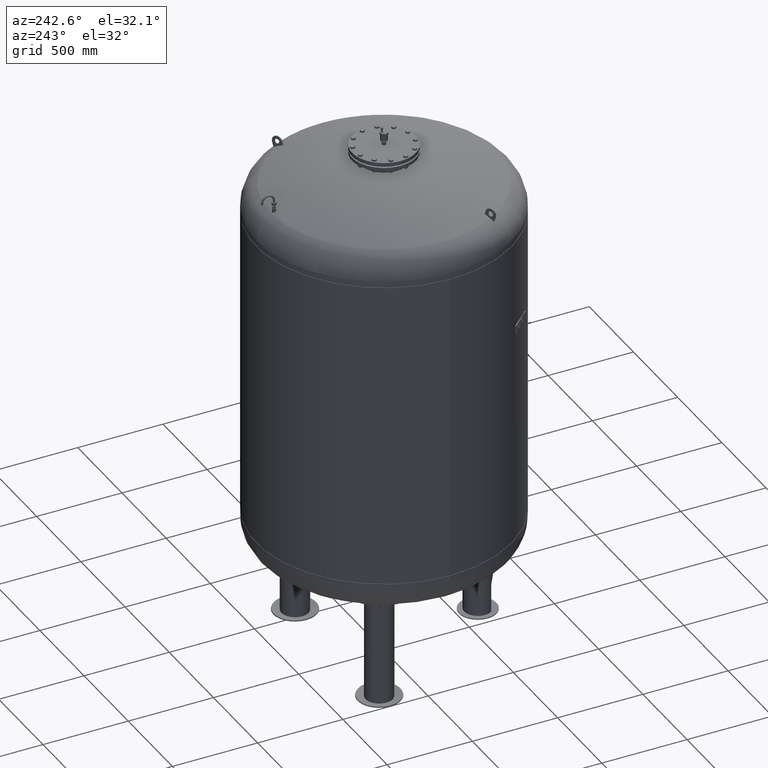
[diagram: clean part render]
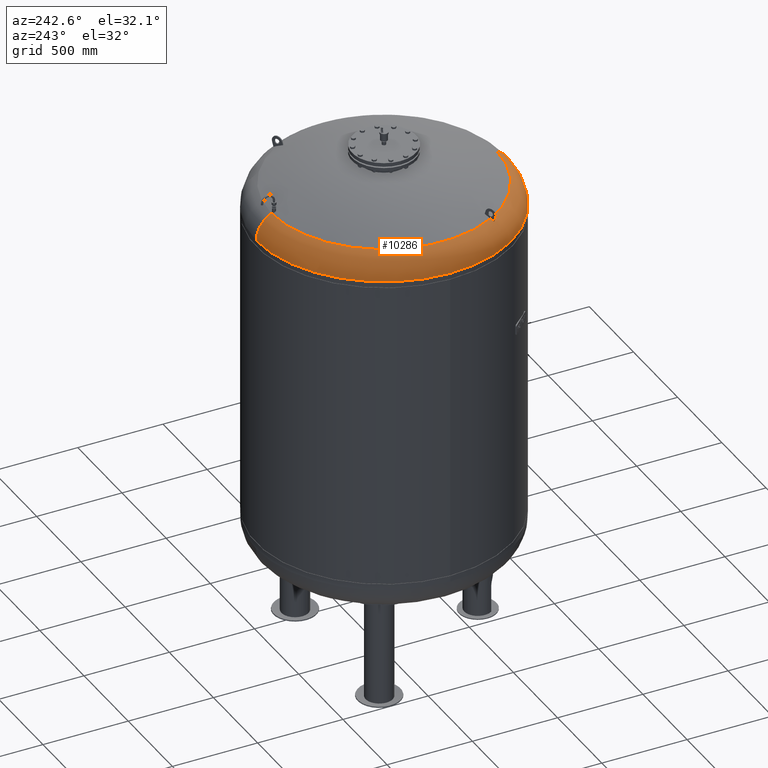
[diagram: same view with one face highlighted and labeled with its STEP entity id]
A machine part, auxiliary view. The second image highlights one B-rep face of the part: STEP entity #10286.
In plain terms, the highlighted toroidal blend (fillet) surface has major radius 591 mm and minor (blend) radius 159 mm.
Its self-contained STEP definition (entity closure, byte-faithful):
#9683=CARTESIAN_POINT('',(-750.0,3.761120E-014,2679.762332584101800));
#9684=VERTEX_POINT('',#9683);
#9691=CARTESIAN_POINT('',(1.267436E-013,750.0,2679.762332584101800));
#9692=VERTEX_POINT('',#9691);
#9693=CARTESIAN_POINT('',(1.459986E-014,-5.423428E-014,2679.762332584101800));
#9694=DIRECTION('',(0.0,0.0,-1.0));
#9695=DIRECTION('',(1.0,0.0,0.0));
#9696=AXIS2_PLACEMENT_3D('',#9693,#9694,#9695);
#9697=CIRCLE('',#9696,750.0);
#9698=EDGE_CURVE('',#9684,#9692,#9697,.T.);
#9778=CARTESIAN_POINT('',(3.489809E-014,-750.0,2679.762332584101800));
#9779=VERTEX_POINT('',#9778);
#9780=CARTESIAN_POINT('',(2.782883E-014,-660.606666666666800,2822.716562866229200));
#9781=VERTEX_POINT('',#9780);
#9782=CARTESIAN_POINT('',(3.489809E-014,-591.0,2679.762332584101800));
#9783=DIRECTION('',(-1.0,0.0,0.0));
#9784=DIRECTION('',(0.0,-1.0,0.0));
#9785=AXIS2_PLACEMENT_3D('',#9782,#9783,#9784);
#9786=CIRCLE('',#9785,159.0);
#9787=EDGE_CURVE('',#9779,#9781,#9786,.T.);
#9797=CARTESIAN_POINT('',(1.087271E-013,660.606666666666800,2822.716562866229200));
#9798=VERTEX_POINT('',#9797);
#9799=CARTESIAN_POINT('',(1.072723E-013,591.0,2679.762332584101800));
#9800=DIRECTION('',(1.0,0.0,0.0));
#9801=DIRECTION('',(0.0,1.0,0.0));
#9802=AXIS2_PLACEMENT_3D('',#9799,#9800,#9801);
#9803=CIRCLE('',#9802,159.0);
#9804=EDGE_CURVE('',#9692,#9798,#9803,.T.);
#10050=CARTESIAN_POINT('',(-570.596255916196580,-332.898003566952920,2822.716562866229700));
#10051=VERTEX_POINT('',#10050);
#10052=CARTESIAN_POINT('',(-588.588482349331340,-343.285820341443810,2810.575471650438900));
#10053=VERTEX_POINT('',#10052);
#10054=CARTESIAN_POINT('',(-570.596255916196580,-332.898003566952920,2822.716562866229700));
#10055=CARTESIAN_POINT('',(-572.053991207973350,-333.739627430067460,2821.896971483751700));
#10056=CARTESIAN_POINT('',(-573.514766784388030,-334.583006602336130,2821.038819520509200));
#10057=CARTESIAN_POINT('',(-576.976356895228950,-336.581556584654270,2818.913031156073000));
#10058=CARTESIAN_POINT('',(-578.974623379368950,-337.735256277185040,2817.612231014925300));
#10059=CARTESIAN_POINT('',(-582.931609407494880,-340.019823225703130,2814.881663004374300));
#10060=CARTESIAN_POINT('',(-584.890327860480620,-341.150689851801190,2813.451893026950500));
#10061=CARTESIAN_POINT('',(-587.410163811145820,-342.605517816231330,2811.507741414689900));
#10062=CARTESIAN_POINT('',(-588.001034993596930,-342.946657452475790,2811.044139472540300));
#10063=CARTESIAN_POINT('',(-588.588482349331340,-343.285820341443810,2810.575471650438900));
#10064=B_SPLINE_CURVE_WITH_KNOTS('',3,(#10054,#10055,#10056,#10057,#10058,#10059,#10060,#10061,#10062,#10063),.UNSPECIFIED.,.F.,.U.,(4,2,2,2,4),(774.656357685334110,780.010496801651020,787.369065281617960,794.727633761584910,796.996981542536560),.UNSPECIFIED.);
#10065=EDGE_CURVE('',#10051,#10053,#10064,.T.);
#10167=CARTESIAN_POINT('',(-591.588482349331340,-338.089667918737230,2810.575471650438900));
#10168=VERTEX_POINT('',#10167);
#10169=CARTESIAN_POINT('',(-588.588482349331340,-343.285820341443810,2810.575471650438900));
#10170=CARTESIAN_POINT('',(-589.090111222557650,-342.418391231104920,2810.578030124753200));
#10171=CARTESIAN_POINT('',(-589.590425441359340,-341.552525995020690,2810.579301453786200));
#10172=CARTESIAN_POINT('',(-590.089401200238290,-340.688274628897030,2810.579301453786200));
#10173=CARTESIAN_POINT('',(-590.588376959113930,-339.824023262779290,2810.579301453786200));
#10174=CARTESIAN_POINT('',(-591.088081140412330,-338.957805821386390,2810.578030124753200));
#10175=CARTESIAN_POINT('',(-591.588482349331340,-338.089667918737230,2810.575471650438900));
#10176=B_SPLINE_CURVE_WITH_KNOTS('',3,(#10169,#10170,#10171,#10172,#10173,#10174,#10175),.UNSPECIFIED.,.F.,.U.,(4,3,4),(-2.993854553274037,0.0,2.993854553253479),.UNSPECIFIED.);
#10177=EDGE_CURVE('',#10053,#10168,#10176,.T.);
#10202=CARTESIAN_POINT('',(-573.596255916196580,-327.701851144246290,2822.716562866229700));
#10203=VERTEX_POINT('',#10202);
#10204=CARTESIAN_POINT('',(-591.588482349331340,-338.089667918737230,2810.575471650438900));
#10205=CARTESIAN_POINT('',(-591.001091399295430,-337.750537595614450,2811.044094471851200));
#10206=CARTESIAN_POINT('',(-590.410277309616280,-337.409430921897070,2811.507652363015000));
#10207=CARTESIAN_POINT('',(-587.890496100690370,-335.954634562624850,2813.451768031998700));
#10208=CARTESIAN_POINT('',(-585.931774475118230,-334.823766104833230,2814.881544856047600));
#10209=CARTESIAN_POINT('',(-581.974781685757190,-332.539195252714250,2817.612126014599200));
#10210=CARTESIAN_POINT('',(-579.976511612969600,-331.385493488276780,2818.912932457119000));
#10211=CARTESIAN_POINT('',(-576.514867502691460,-329.386912329369070,2821.038760350182700));
#10212=CARTESIAN_POINT('',(-575.054041405248540,-328.543503988771140,2821.896943261032400));
#10213=CARTESIAN_POINT('',(-573.596255916196580,-327.701851144246290,2822.716562866229700));
#10214=B_SPLINE_CURVE_WITH_KNOTS('',3,(#10204,#10205,#10206,#10207,#10208,#10209,#10210,#10211,#10212,#10213),.UNSPECIFIED.,.F.,.U.,(4,2,2,2,4),(144.901635701804910,147.170765481127490,154.529352849647950,161.887940218168410,167.242267557251490),.UNSPECIFIED.);
#10215=EDGE_CURVE('',#10168,#10203,#10214,.T.);
#10252=CARTESIAN_POINT('',(3.489809E-014,-5.423428E-014,2679.762332584101800));
#10253=DIRECTION('',(4.945121E-017,-1.836970E-016,-1.0));
#10254=DIRECTION('',(0.0,-1.0,0.0));
#10255=AXIS2_PLACEMENT_3D('',#10252,#10253,#10254);
#10256=TOROIDAL_SURFACE('',#10255,591.0,159.0);
#10257=ORIENTED_EDGE('',*,*,#9787,.T.);
#10258=CARTESIAN_POINT('',(7.530601E-015,-2.797401E-014,2822.716562866229200));
#10259=DIRECTION('',(0.0,0.0,-1.0));
#10260=DIRECTION('',(1.0,0.0,0.0));
#10261=AXIS2_PLACEMENT_3D('',#10258,#10259,#10260);
#10262=CIRCLE('',#10261,660.606666666666800);
#10263=EDGE_CURVE('',#9781,#10051,#10262,.T.);
#10264=ORIENTED_EDGE('',*,*,#10263,.T.);
#10265=ORIENTED_EDGE('',*,*,#10065,.T.);
#10266=ORIENTED_EDGE('',*,*,#10177,.T.);
#10267=ORIENTED_EDGE('',*,*,#10215,.T.);
#10268=CARTESIAN_POINT('',(7.530601E-015,-2.797401E-014,2822.716562866229200));
#10269=DIRECTION('',(0.0,0.0,-1.0));
#10270=DIRECTION('',(1.0,0.0,0.0));
#10271=AXIS2_PLACEMENT_3D('',#10268,#10269,#10270);
#10272=CIRCLE('',#10271,660.606666666666800);
#10273=EDGE_CURVE('',#10203,#9798,#10272,.T.);
#10274=ORIENTED_EDGE('',*,*,#10273,.T.);
#10275=ORIENTED_EDGE('',*,*,#9804,.F.);
#10276=ORIENTED_EDGE('',*,*,#9698,.F.);
#10277=CARTESIAN_POINT('',(1.459986E-014,-5.423428E-014,2679.762332584101800));
#10278=DIRECTION('',(0.0,0.0,-1.0));
#10279=DIRECTION('',(1.0,0.0,0.0));
#10280=AXIS2_PLACEMENT_3D('',#10277,#10278,#10279);
#10281=CIRCLE('',#10280,750.0);
#10282=EDGE_CURVE('',#9779,#9684,#10281,.T.);
#10283=ORIENTED_EDGE('',*,*,#10282,.F.);
#10284=EDGE_LOOP('',(#10257,#10264,#10265,#10266,#10267,#10274,#10275,#10276,#10283));
#10285=FACE_OUTER_BOUND('',#10284,.T.);
#10286=ADVANCED_FACE('',(#10285),#10256,.T.);